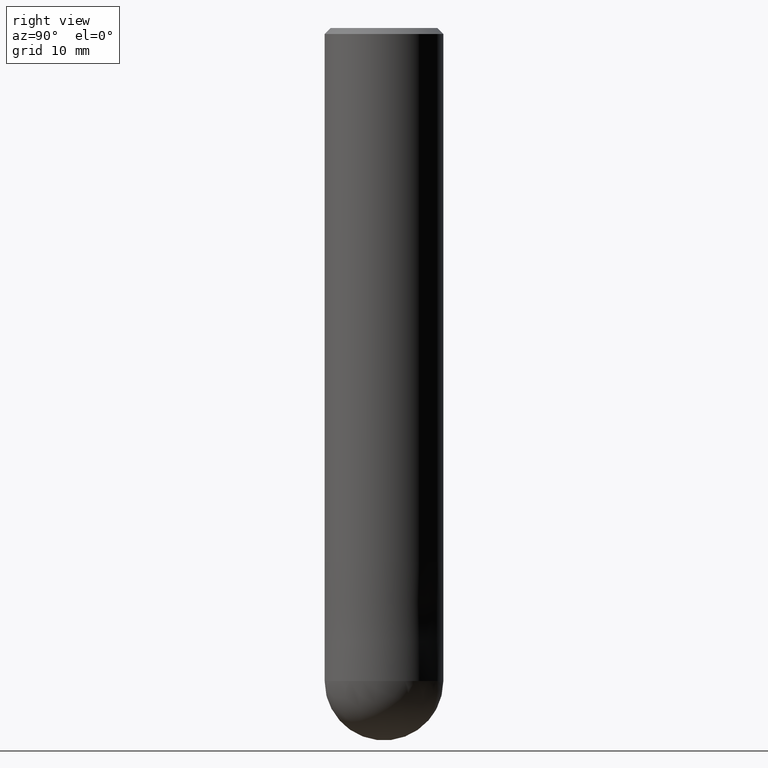
[diagram: clean part render]
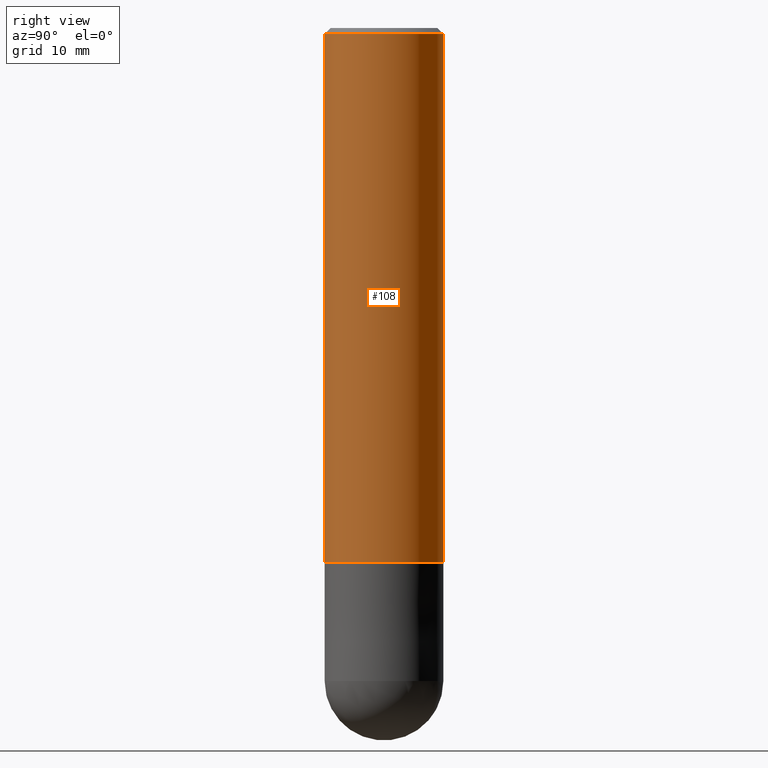
[diagram: same view with one face highlighted and labeled with its STEP entity id]
A machine part, right view. The second image highlights one B-rep face of the part: STEP entity #108.
In plain terms, the highlighted cylindrical surface (partial cylindrical patch) has radius 5 mm, axis along (-0, -0, 1).
Its self-contained STEP definition (entity closure, byte-faithful):
#66=EDGE_CURVE('',#76,#110,#158,.T.);
#76=VERTEX_POINT('',#168);
#82=EDGE_CURVE('',#88,#92,#174,.T.);
#88=VERTEX_POINT('',#181);
#92=VERTEX_POINT('',#185);
#100=EDGE_CURVE('',#110,#92,#195,.T.);
#108=ADVANCED_FACE('',(#204),#205,.T.);
#110=VERTEX_POINT('',#207);
#130=EDGE_CURVE('',#88,#76,#231,.T.);
#158=CIRCLE('',#256,5.0);
#168=CARTESIAN_POINT('',(0.0,5.0,-45.0));
#174=CIRCLE('',#278,5.0);
#181=CARTESIAN_POINT('',(0.0,5.0,-0.5));
#185=CARTESIAN_POINT('',(6.12303176911189E-016,-5.0,-0.5));
#195=LINE('',#302,#303);
#204=FACE_OUTER_BOUND('',#314,.T.);
#205=CYLINDRICAL_SURFACE('',#315,5.0);
#207=CARTESIAN_POINT('',(6.12303176911189E-016,-5.0,-45.0));
#231=LINE('',#345,#346);
#256=AXIS2_PLACEMENT_3D('',#358,#359,#360);
#278=AXIS2_PLACEMENT_3D('',#376,#377,#378);
#302=CARTESIAN_POINT('',(6.12303176911189E-016,-5.0,-22.75));
#303=VECTOR('',#402,1.0);
#314=EDGE_LOOP('',(#418,#419,#420,#421));
#315=AXIS2_PLACEMENT_3D('',#422,#423,#424);
#345=CARTESIAN_POINT('',(-6.12303176911189E-016,5.0,-22.75));
#346=VECTOR('',#455,1.0);
#358=CARTESIAN_POINT('',(0.0,0.0,-45.0));
#359=DIRECTION('',(0.0,0.0,-1.0));
#360=DIRECTION('',(0.0,1.0,0.0));
#376=CARTESIAN_POINT('',(0.0,0.0,-0.5));
#377=DIRECTION('',(0.0,0.0,-1.0));
#378=DIRECTION('',(0.0,1.0,0.0));
#402=DIRECTION('',(-0.0,-0.0,1.0));
#418=ORIENTED_EDGE('',*,*,#130,.F.);
#419=ORIENTED_EDGE('',*,*,#82,.T.);
#420=ORIENTED_EDGE('',*,*,#100,.F.);
#421=ORIENTED_EDGE('',*,*,#66,.F.);
#422=CARTESIAN_POINT('',(0.0,0.0,-22.75));
#423=DIRECTION('',(-0.0,-0.0,1.0));
#424=DIRECTION('',(0.0,1.0,0.0));
#455=DIRECTION('',(0.0,0.0,-1.0));